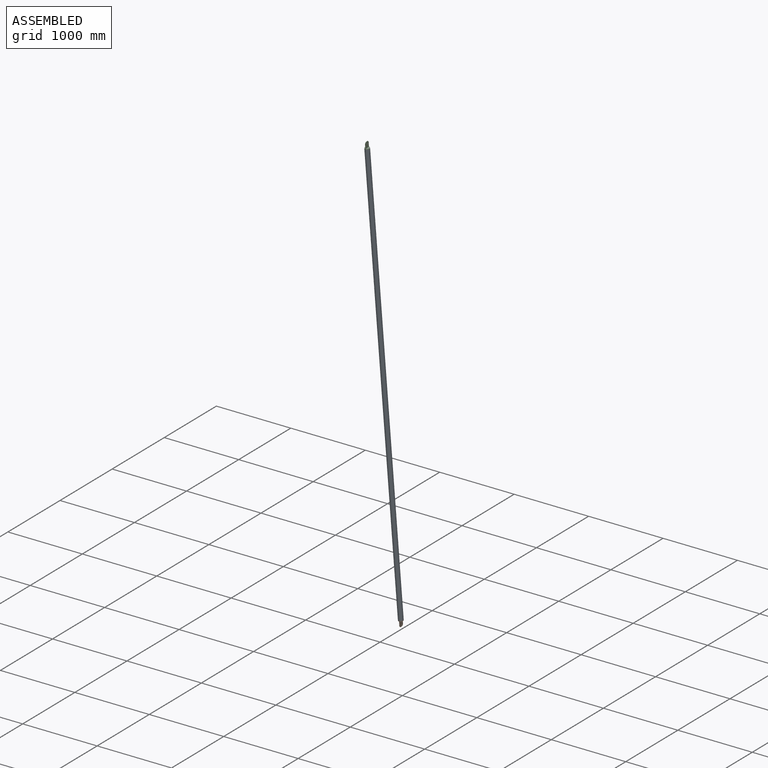
[diagram: assembled view]
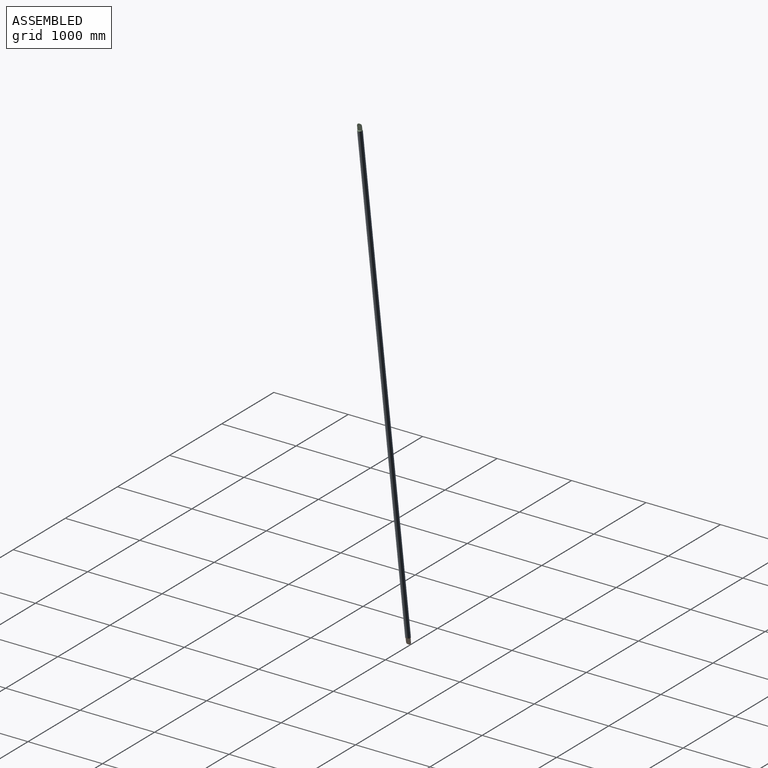
[diagram: assembled view, second angle]
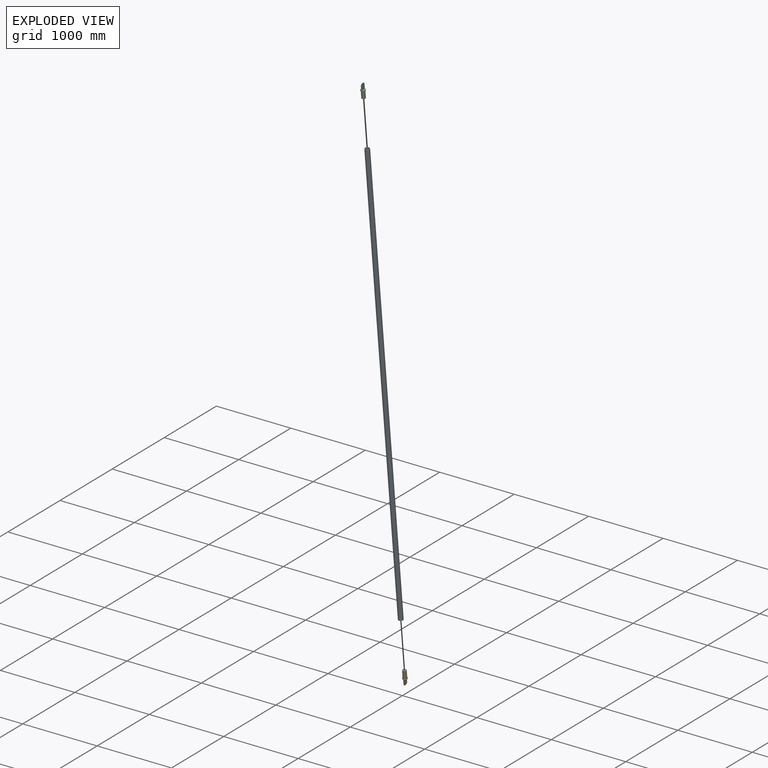
[diagram: exploded view]
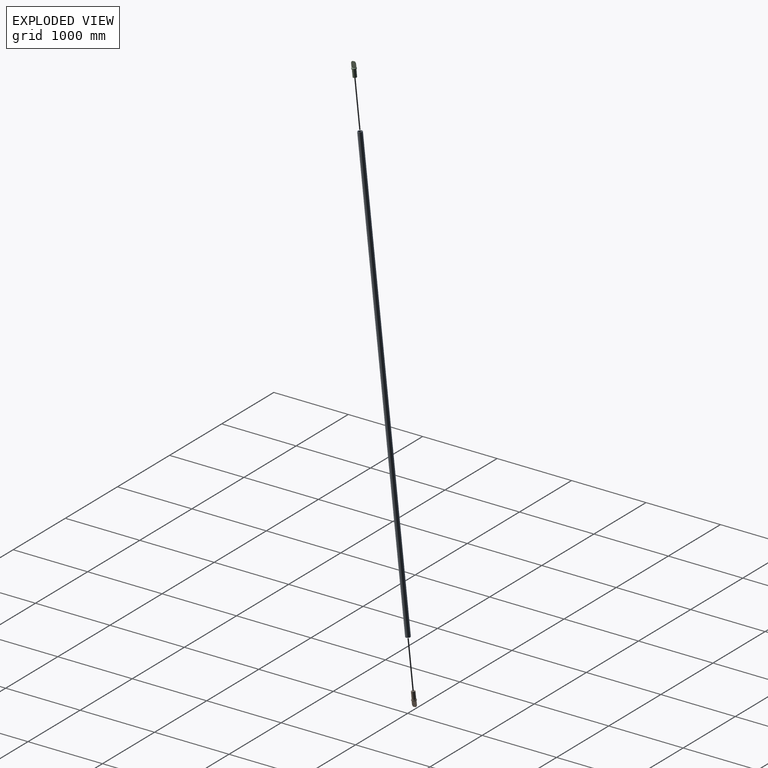
[diagram: exploded view, second angle]
ASSEMBLY  parts=3 mates=2
PART A: 4 faces, bbox 63.5x6000x63.5 mm
  f0: cylinder r=25.4mm len=6000mm, axis (0,-1,0), area 957557.4mm2, adj f2,f3
  f1: cylinder r=31.75mm len=6000mm, axis (0,-1,0), area 1196946.8mm2, adj f2,f3
  f2: plane 63.5x63.5mm, normal (0,1,0), area 1140.1mm2, adj f0,f1
  f3: plane 63.5x63.5mm, normal (0,-1,0), area 1140.1mm2, adj f0,f1
PART B: 19 faces, bbox 63.5x190x63.5 mm
  f0: plane 63.3x29.25mm, normal (0,-1,0), area 1424.9mm2, adj f4,f14
  f1: plane 50.8x50.8mm, normal (0,1,0), area 2026.8mm2, adj f2
  f2: cylinder r=25.4mm len=100mm, axis (0,-1,0), area 15959.3mm2, adj f1,f3
  f3: plane 63.5x63.5mm, normal (0,1,0), area 1140.1mm2, adj f2,f4
  f4: cylinder r=31.75mm len=63.5mm, axis (0,-1,0), area 1994.9mm2, adj f0,f3,f5,f6,f7,f8,f9
  f5: plane 63.3x29.25mm, normal (0,-1,0), area 1424.9mm2, adj f4,f13
  f6: plane 2.5x0.1mm, normal (0,1,0), area 0.1mm2, adj f4,f10,f13
  f7: plane 2.5x0.1mm, normal (0,1,0), area 0.1mm2, adj f4,f10,f14
  f8: plane 2.5x0.1mm, normal (0,1,0), area 0.1mm2, adj f4,f12,f13
  f9: plane 2.5x0.1mm, normal (0,1,0), area 0.1mm2, adj f4,f12,f14
  f10: plane 55x5mm, normal (0,0,1), area 275mm2, adj f6,f7,f13,f14,f15
  f11: plane 13.5x5mm, normal (0,-1,0), area 67.5mm2, adj f13,f14,f15,f16
  f12: plane 55x5mm, normal (0,0,-1), area 275mm2, adj f8,f9,f13,f14,f16
  f13: plane 80x63.5mm, normal (1,0,0), area 4497.6mm2, adj f5,f6,f8,f10,f11,f12,f15,f16
  f14: plane 80x63.5mm, normal (-1,0,0), area 4811.7mm2, adj f0,f7,f9,f10,f11,f12,f15,f16
  f15: cylinder r=25mm len=25mm, axis (-1,0,0), area 196.3mm2, adj f10,f11,f13,f14
  f16: cylinder r=25mm len=25mm, axis (1,0,0), area 196.3mm2, adj f11,f12,f13,f14
  f17: plane 20x20mm, normal (1,0,0), area 314.2mm2, adj f18
  f18: cylinder r=10mm len=20mm, axis (-1,0,0), area 157.1mm2, adj f13,f17
PART C: 19 faces, bbox 63.5x190x63.5 mm
  f0: plane 63.3x29.25mm, normal (0,1,0), area 1424.9mm2, adj f4,f14
  f1: plane 50.8x50.8mm, normal (0,-1,0), area 2026.8mm2, adj f2
  f2: cylinder r=25.4mm len=100mm, axis (0,1,0), area 15959.3mm2, adj f1,f3
  f3: plane 63.5x63.5mm, normal (0,-1,0), area 1140.1mm2, adj f2,f4
  f4: cylinder r=31.75mm len=63.5mm, axis (0,1,0), area 1994.9mm2, adj f0,f3,f5,f6,f7,f8,f9
  f5: plane 63.3x29.25mm, normal (0,1,0), area 1424.9mm2, adj f4,f13
  f6: plane 2.5x0.1mm, normal (0,-1,0), area 0.1mm2, adj f4,f10,f13
  f7: plane 2.5x0.1mm, normal (0,-1,0), area 0.1mm2, adj f4,f10,f14
  f8: plane 2.5x0.1mm, normal (0,-1,0), area 0.1mm2, adj f4,f12,f13
  f9: plane 2.5x0.1mm, normal (0,-1,0), area 0.1mm2, adj f4,f12,f14
  f10: plane 55x5mm, normal (0,0,1), area 275mm2, adj f6,f7,f13,f14,f15
  f11: plane 13.5x5mm, normal (0,1,0), area 67.5mm2, adj f13,f14,f15,f16
  f12: plane 55x5mm, normal (0,0,-1), area 275mm2, adj f8,f9,f13,f14,f16
  f13: plane 80x63.5mm, normal (1,0,0), area 4497.6mm2, adj f5,f6,f8,f10,f11,f12,f15,f16
  f14: plane 80x63.5mm, normal (-1,0,0), area 4811.7mm2, adj f0,f7,f9,f10,f11,f12,f15,f16
  f15: cylinder r=25mm len=25mm, axis (-1,0,0), area 196.3mm2, adj f10,f11,f13,f14
  f16: cylinder r=25mm len=25mm, axis (1,0,0), area 196.3mm2, adj f11,f12,f13,f14
  f17: plane 20x20mm, normal (1,0,0), area 314.2mm2, adj f18
  f18: cylinder r=10mm len=20mm, axis (-1,0,0), area 157.1mm2, adj f13,f17
PLACE A rot(axis=(1,0,0),96.2deg) t=(-16.25,-6.98,139.62)mm
PLACE B rot(axis=(1,0,0),96.2deg) t=(-16.25,-6.98,139.62)mm
PLACE C rot(axis=(1,0,0),96.2deg) t=(-16.25,-6.98,139.62)mm
MATE fastened A.f1 <-> B.f2  axis (0,0.11,-0.99) through (-16.25,-6.98,139.62)mm
MATE fastened C.f2 <-> A.f1  axis (0,0.11,-0.99) through (-16.25,-651.42,6104.92)mm
